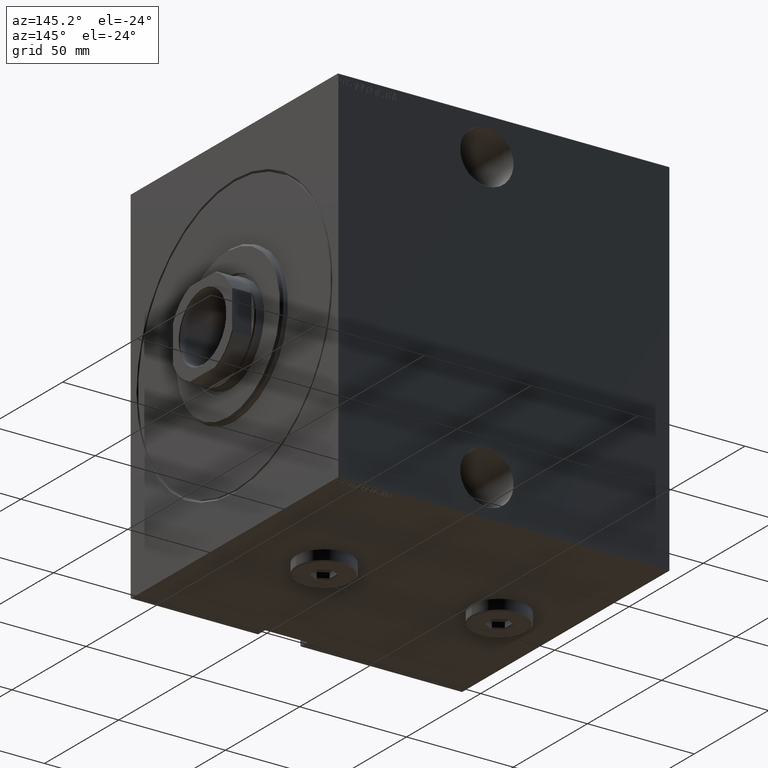
[diagram: clean part render]
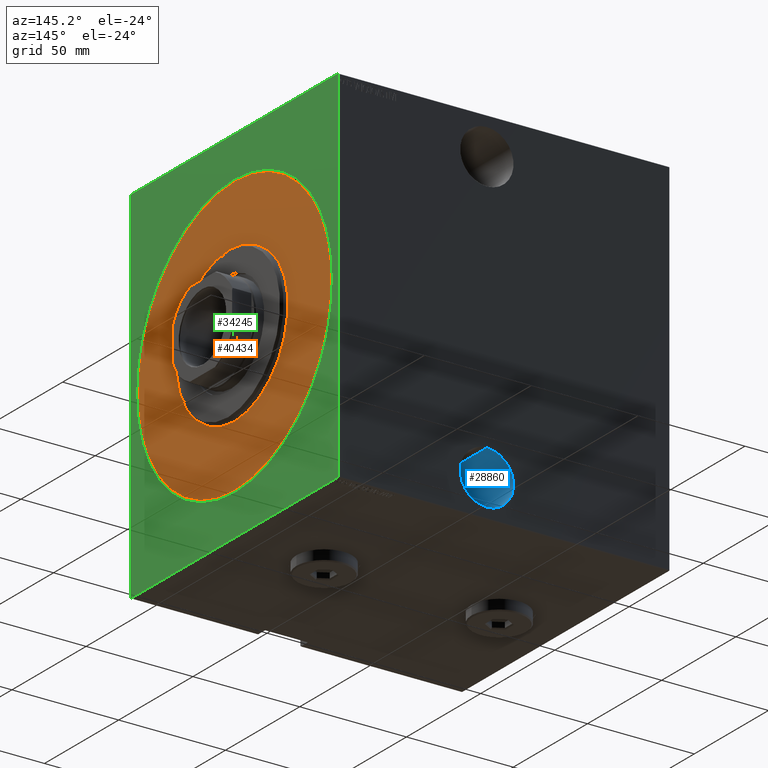
[diagram: same view with three faces highlighted in distinct colors, each labeled with its STEP entity id]
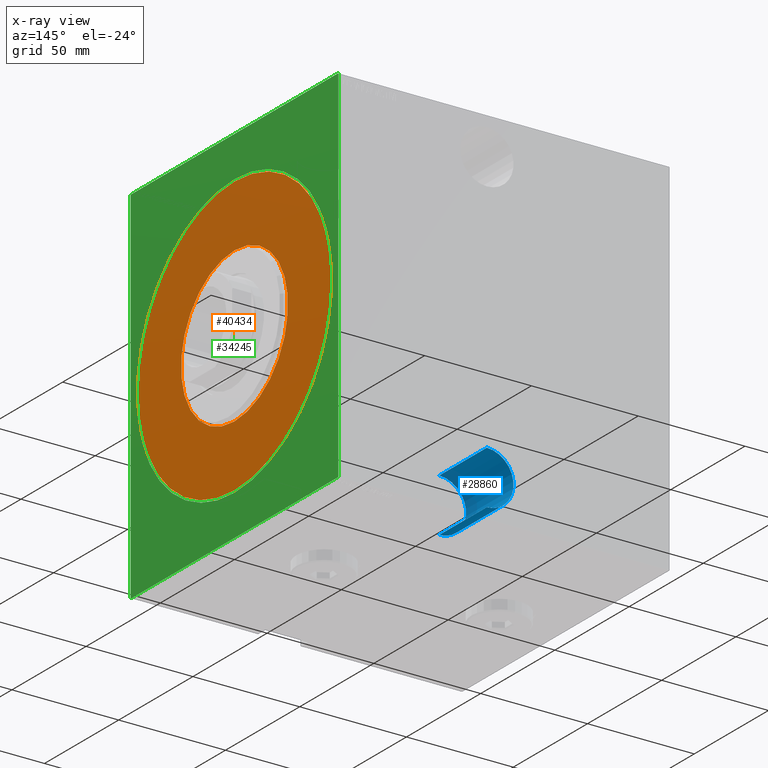
[diagram: x-ray of the same camera — body ghosted, the three highlighted faces saturated]
A machine part, auxiliary view with three faces highlighted in distinct colors.
The next image is the same camera in x-ray (body ghosted, the three faces saturated) — at least one of them is partly hidden behind the body in this view.
Their STEP definitions:

[orange] entity #40434 — the highlighted planar face has unit normal (1, 0, 0).
#864 = CARTESIAN_POINT ( 'NONE',  ( 0.000000000000000000, 7.960204194457797252E-15, 65.00000000000000000 ) ) ;
#1316 = DIRECTION ( 'NONE',  ( 0.000000000000000000, 0.000000000000000000, -1.000000000000000000 ) ) ;
#2880 = CARTESIAN_POINT ( 'NONE',  ( 0.000000000000000000, 0.000000000000000000, 0.000000000000000000 ) ) ;
#3931 = AXIS2_PLACEMENT_3D ( 'NONE', #18247, #31847, #1316 ) ;
#4928 = VERTEX_POINT ( 'NONE', #864 ) ;
#7348 = DIRECTION ( 'NONE',  ( 0.000000000000000000, 0.000000000000000000, -1.000000000000000000 ) ) ;
#7805 = FACE_OUTER_BOUND ( 'NONE', #38899, .T. ) ;
#10669 = DIRECTION ( 'NONE',  ( 1.000000000000000000, 0.000000000000000000, 0.000000000000000000 ) ) ;
#14183 = AXIS2_PLACEMENT_3D ( 'NONE', #21397, #18053, #31654 ) ;
#16245 = DIRECTION ( 'NONE',  ( 0.000000000000000000, 0.000000000000000000, -1.000000000000000000 ) ) ;
#16984 = CARTESIAN_POINT ( 'NONE',  ( 0.000000000000000000, 4.408728476930470856E-15, -36.00000000000000000 ) ) ;
#17756 = EDGE_CURVE ( 'NONE', #4928, #34488, #18197, .T. ) ;
#18053 = DIRECTION ( 'NONE',  ( 1.000000000000000000, 0.000000000000000000, 0.000000000000000000 ) ) ;
#18197 = CIRCLE ( 'NONE', #3931, 65.00000000000000000 ) ;
#18247 = CARTESIAN_POINT ( 'NONE',  ( 0.000000000000000000, 0.000000000000000000, 0.000000000000000000 ) ) ;
#19738 = EDGE_LOOP ( 'NONE', ( #36928, #32120 ) ) ;
#20852 = DIRECTION ( 'NONE',  ( 1.000000000000000000, -0.000000000000000000, 0.000000000000000000 ) ) ;
#21397 = CARTESIAN_POINT ( 'NONE',  ( 0.000000000000000000, 0.000000000000000000, 0.000000000000000000 ) ) ;
#21452 = DIRECTION ( 'NONE',  ( 1.000000000000000000, -0.000000000000000000, 0.000000000000000000 ) ) ;
#23405 = AXIS2_PLACEMENT_3D ( 'NONE', #35697, #21452, #32362 ) ;
#23810 = ORIENTED_EDGE ( 'NONE', *, *, #25755, .T. ) ;
#24253 = VERTEX_POINT ( 'NONE', #27940 ) ;
#24759 = FACE_BOUND ( 'NONE', #19738, .T. ) ;
#24801 = CIRCLE ( 'NONE', #26204, 36.00000000000000000 ) ;
#25024 = ORIENTED_EDGE ( 'NONE', *, *, #17756, .T. ) ;
#25426 = AXIS2_PLACEMENT_3D ( 'NONE', #27626, #10669, #7348 ) ;
#25755 = EDGE_CURVE ( 'NONE', #34488, #4928, #32539, .T. ) ;
#26204 = AXIS2_PLACEMENT_3D ( 'NONE', #2880, #20852, #16245 ) ;
#27626 = CARTESIAN_POINT ( 'NONE',  ( 0.000000000000000000, 0.000000000000000000, 0.000000000000000000 ) ) ;
#27717 = EDGE_CURVE ( 'NONE', #24253, #37636, #24801, .T. ) ;
#27903 = CARTESIAN_POINT ( 'NONE',  ( 0.000000000000000000, 0.000000000000000000, -65.00000000000000000 ) ) ;
#27940 = CARTESIAN_POINT ( 'NONE',  ( 0.000000000000000000, 0.000000000000000000, 36.00000000000000000 ) ) ;
#29793 = CIRCLE ( 'NONE', #23405, 36.00000000000000000 ) ;
#31654 = DIRECTION ( 'NONE',  ( 0.000000000000000000, 0.000000000000000000, -1.000000000000000000 ) ) ;
#31847 = DIRECTION ( 'NONE',  ( 1.000000000000000000, 0.000000000000000000, 0.000000000000000000 ) ) ;
#32120 = ORIENTED_EDGE ( 'NONE', *, *, #37815, .F. ) ;
#32362 = DIRECTION ( 'NONE',  ( 0.000000000000000000, 0.000000000000000000, -1.000000000000000000 ) ) ;
#32539 = CIRCLE ( 'NONE', #25426, 65.00000000000000000 ) ;
#34488 = VERTEX_POINT ( 'NONE', #27903 ) ;
#35697 = CARTESIAN_POINT ( 'NONE',  ( 0.000000000000000000, 0.000000000000000000, 0.000000000000000000 ) ) ;
#36928 = ORIENTED_EDGE ( 'NONE', *, *, #27717, .F. ) ;
#37636 = VERTEX_POINT ( 'NONE', #16984 ) ;
#37815 = EDGE_CURVE ( 'NONE', #37636, #24253, #29793, .T. ) ;
#38337 = PLANE ( 'NONE',  #14183 ) ;
#38899 = EDGE_LOOP ( 'NONE', ( #23810, #25024 ) ) ;
#40434 = ADVANCED_FACE ( 'NONE', ( #7805, #24759 ), #38337, .T. ) ;

[blue] entity #28860 — the highlighted cylindrical surface (edge-blend (fillet) strip) has radius 12.5 mm, axis along (0, 1, 0).
#2023 = EDGE_LOOP ( 'NONE', ( #9989, #18894, #5726, #23984 ) ) ;
#2466 = CARTESIAN_POINT ( 'NONE',  ( 69.50000000000002842, -70.00000000000000000, -80.00000000000000000 ) ) ;
#2495 = DIRECTION ( 'NONE',  ( -0.000000000000000000, -1.000000000000000000, 1.963837897332234442E-16 ) ) ;
#4437 = CARTESIAN_POINT ( 'NONE',  ( 69.50000000000002842, -38.00000000000000711, -80.00000000000000000 ) ) ;
#4521 = VECTOR ( 'NONE', #2495, 1000.000000000000000 ) ;
#5345 = CARTESIAN_POINT ( 'NONE',  ( 69.50000000000002842, -38.00000000000000711, -55.00000000000000711 ) ) ;
#5726 = ORIENTED_EDGE ( 'NONE', *, *, #20849, .T. ) ;
#5835 = CARTESIAN_POINT ( 'NONE',  ( 69.50000000000002842, -38.00000000000000711, -55.00000000000000711 ) ) ;
#6602 = VERTEX_POINT ( 'NONE', #4437 ) ;
#6970 = DIRECTION ( 'NONE',  ( 0.000000000000000000, 0.000000000000000000, -1.000000000000000000 ) ) ;
#9989 = ORIENTED_EDGE ( 'NONE', *, *, #12723, .F. ) ;
#11821 = AXIS2_PLACEMENT_3D ( 'NONE', #16279, #43458, #12907 ) ;
#11956 = AXIS2_PLACEMENT_3D ( 'NONE', #36377, #29469, #39706 ) ;
#12723 = EDGE_CURVE ( 'NONE', #13004, #29210, #36375, .T. ) ;
#12907 = DIRECTION ( 'NONE',  ( 0.000000000000000000, 0.000000000000000000, -1.000000000000000000 ) ) ;
#13004 = VERTEX_POINT ( 'NONE', #5345 ) ;
#14712 = AXIS2_PLACEMENT_3D ( 'NONE', #40829, #23901, #6970 ) ;
#15856 = CYLINDRICAL_SURFACE ( 'NONE', #11956, 12.49999999999999645 ) ;
#16279 = CARTESIAN_POINT ( 'NONE',  ( 69.50000000000002842, -38.00000000000000711, -67.50000000000000000 ) ) ;
#18894 = ORIENTED_EDGE ( 'NONE', *, *, #23915, .F. ) ;
#20849 = EDGE_CURVE ( 'NONE', #6602, #40156, #25566, .T. ) ;
#21108 = VECTOR ( 'NONE', #39786, 1000.000000000000000 ) ;
#23827 = EDGE_CURVE ( 'NONE', #40156, #29210, #25396, .T. ) ;
#23901 = DIRECTION ( 'NONE',  ( 0.000000000000000000, -1.000000000000000000, 1.963837897332234442E-16 ) ) ;
#23915 = EDGE_CURVE ( 'NONE', #6602, #13004, #43167, .T. ) ;
#23984 = ORIENTED_EDGE ( 'NONE', *, *, #23827, .T. ) ;
#25345 = CARTESIAN_POINT ( 'NONE',  ( 69.50000000000002842, -38.00000000000000711, -80.00000000000000000 ) ) ;
#25396 = CIRCLE ( 'NONE', #14712, 12.49999999999999645 ) ;
#25566 = LINE ( 'NONE', #25345, #21108 ) ;
#28860 = ADVANCED_FACE ( 'NONE', ( #33039 ), #15856, .F. ) ;
#29210 = VERTEX_POINT ( 'NONE', #39194 ) ;
#29469 = DIRECTION ( 'NONE',  ( -0.000000000000000000, -1.000000000000000000, 1.963837897332234442E-16 ) ) ;
#33039 = FACE_OUTER_BOUND ( 'NONE', #2023, .T. ) ;
#36375 = LINE ( 'NONE', #5835, #4521 ) ;
#36377 = CARTESIAN_POINT ( 'NONE',  ( 69.50000000000002842, -38.00000000000000711, -67.50000000000000000 ) ) ;
#39194 = CARTESIAN_POINT ( 'NONE',  ( 69.50000000000002842, -70.00000000000000000, -55.00000000000000711 ) ) ;
#39706 = DIRECTION ( 'NONE',  ( 0.000000000000000000, 0.000000000000000000, -1.000000000000000000 ) ) ;
#39786 = DIRECTION ( 'NONE',  ( -0.000000000000000000, -1.000000000000000000, 1.963837897332234442E-16 ) ) ;
#40156 = VERTEX_POINT ( 'NONE', #2466 ) ;
#40829 = CARTESIAN_POINT ( 'NONE',  ( 69.50000000000002842, -70.00000000000000000, -67.50000000000000000 ) ) ;
#43167 = CIRCLE ( 'NONE', #11821, 12.49999999999999645 ) ;
#43458 = DIRECTION ( 'NONE',  ( 0.000000000000000000, -1.000000000000000000, 1.963837897332234442E-16 ) ) ;

[green] entity #34245 — the highlighted planar face has unit normal (-1, 0, 0).
#17 = VERTEX_POINT ( 'NONE', #40688 ) ;
#544 = AXIS2_PLACEMENT_3D ( 'NONE', #8524, #32810, #15211 ) ;
#891 = EDGE_CURVE ( 'NONE', #1859, #22953, #26020, .T. ) ;
#941 = VERTEX_POINT ( 'NONE', #6406 ) ;
#1859 = VERTEX_POINT ( 'NONE', #31365 ) ;
#1891 = VECTOR ( 'NONE', #32461, 1000.000000000000000 ) ;
#1903 = DIRECTION ( 'NONE',  ( 0.000000000000000000, 0.000000000000000000, 1.000000000000000000 ) ) ;
#1987 = CARTESIAN_POINT ( 'NONE',  ( 0.000000000000000000, 0.000000000000000000, 0.000000000000000000 ) ) ;
#2654 = DIRECTION ( 'NONE',  ( 1.000000000000000000, 0.000000000000000000, -0.000000000000000000 ) ) ;
#3482 = VECTOR ( 'NONE', #13065, 1000.000000000000114 ) ;
#4225 = VERTEX_POINT ( 'NONE', #10592 ) ;
#4251 = LINE ( 'NONE', #38119, #40447 ) ;
#4271 = ORIENTED_EDGE ( 'NONE', *, *, #38623, .F. ) ;
#5070 = EDGE_CURVE ( 'NONE', #7356, #17, #41400, .T. ) ;
#5428 = CARTESIAN_POINT ( 'NONE',  ( 0.000000000000000000, 70.00000000000002842, -84.70000000000001705 ) ) ;
#5764 = LINE ( 'NONE', #9314, #37427 ) ;
#6406 = CARTESIAN_POINT ( 'NONE',  ( 0.000000000000000000, -69.99999999999998579, -84.69999999999998863 ) ) ;
#7023 = CARTESIAN_POINT ( 'NONE',  ( 0.000000000000000000, -69.99999999999998579, 84.70000000000004547 ) ) ;
#7356 = VERTEX_POINT ( 'NONE', #11311 ) ;
#7725 = AXIS2_PLACEMENT_3D ( 'NONE', #1987, #2654, #15785 ) ;
#8377 = CARTESIAN_POINT ( 'NONE',  ( 0.000000000000000000, 70.00000000000002842, -85.00000000000000000 ) ) ;
#8524 = CARTESIAN_POINT ( 'NONE',  ( 0.000000000000000000, 0.000000000000000000, 0.000000000000000000 ) ) ;
#8598 = CARTESIAN_POINT ( 'NONE',  ( 0.000000000000000000, -69.99999999999998579, 84.70000000000004547 ) ) ;
#9314 = CARTESIAN_POINT ( 'NONE',  ( 0.000000000000000000, -69.70000000000000284, -85.00000000000000000 ) ) ;
#10101 = EDGE_CURVE ( 'NONE', #1859, #16652, #24247, .T. ) ;
#10592 = CARTESIAN_POINT ( 'NONE',  ( 0.000000000000000000, 8.082668874372526089E-15, -65.99999999999994316 ) ) ;
#11206 = ORIENTED_EDGE ( 'NONE', *, *, #891, .T. ) ;
#11311 = CARTESIAN_POINT ( 'NONE',  ( 0.000000000000000000, 70.00000000000002842, -84.70000000000001705 ) ) ;
#11520 = CARTESIAN_POINT ( 'NONE',  ( 0.000000000000000000, -69.99999999999998579, -85.00000000000000000 ) ) ;
#12234 = VECTOR ( 'NONE', #24471, 1000.000000000000000 ) ;
#13065 = DIRECTION ( 'NONE',  ( -0.000000000000000000, 0.7071067811865638930, -0.7071067811865312525 ) ) ;
#14906 = VECTOR ( 'NONE', #28700, 1000.000000000000000 ) ;
#15211 = DIRECTION ( 'NONE',  ( 0.000000000000000000, 0.000000000000000000, -1.000000000000000000 ) ) ;
#15277 = LINE ( 'NONE', #8377, #19808 ) ;
#15780 = DIRECTION ( 'NONE',  ( -0.000000000000000000, 0.000000000000000000, -1.000000000000000000 ) ) ;
#15785 = DIRECTION ( 'NONE',  ( 0.000000000000000000, 0.000000000000000000, -1.000000000000000000 ) ) ;
#16427 = CARTESIAN_POINT ( 'NONE',  ( 0.000000000000000000, 69.70000000000007390, 85.00000000000001421 ) ) ;
#16652 = VERTEX_POINT ( 'NONE', #32974 ) ;
#17606 = CARTESIAN_POINT ( 'NONE',  ( 0.000000000000000000, 70.00000000000002842, 84.70000000000007390 ) ) ;
#18540 = VERTEX_POINT ( 'NONE', #36661 ) ;
#19362 = DIRECTION ( 'NONE',  ( 1.000000000000000000, 0.000000000000000000, -0.000000000000000000 ) ) ;
#19808 = VECTOR ( 'NONE', #1903, 1000.000000000000000 ) ;
#20312 = ORIENTED_EDGE ( 'NONE', *, *, #10101, .F. ) ;
#21384 = CARTESIAN_POINT ( 'NONE',  ( 0.000000000000000000, 0.000000000000000000, 65.99999999999994316 ) ) ;
#22475 = FACE_OUTER_BOUND ( 'NONE', #36714, .T. ) ;
#22953 = VERTEX_POINT ( 'NONE', #17606 ) ;
#24247 = LINE ( 'NONE', #27361, #12234 ) ;
#24471 = DIRECTION ( 'NONE',  ( 0.000000000000000000, -1.000000000000000000, -9.912705577010325549E-17 ) ) ;
#25799 = VERTEX_POINT ( 'NONE', #21384 ) ;
#26020 = LINE ( 'NONE', #16427, #3482 ) ;
#27361 = CARTESIAN_POINT ( 'NONE',  ( 0.000000000000000000, 70.00000000000002842, 85.00000000000001421 ) ) ;
#28083 = EDGE_CURVE ( 'NONE', #25799, #4225, #37594, .T. ) ;
#28556 = ORIENTED_EDGE ( 'NONE', *, *, #41424, .F. ) ;
#28700 = DIRECTION ( 'NONE',  ( 0.000000000000000000, 1.000000000000000000, 0.000000000000000000 ) ) ;
#29322 = LINE ( 'NONE', #8598, #1891 ) ;
#29714 = ORIENTED_EDGE ( 'NONE', *, *, #38828, .T. ) ;
#30318 = EDGE_CURVE ( 'NONE', #18540, #941, #5764, .T. ) ;
#31365 = CARTESIAN_POINT ( 'NONE',  ( 0.000000000000000000, 69.70000000000007390, 85.00000000000001421 ) ) ;
#32461 = DIRECTION ( 'NONE',  ( -0.000000000000000000, 0.7071067811865638930, 0.7071067811865311414 ) ) ;
#32691 = EDGE_CURVE ( 'NONE', #43133, #16652, #29322, .T. ) ;
#32810 = DIRECTION ( 'NONE',  ( 1.000000000000000000, 0.000000000000000000, -0.000000000000000000 ) ) ;
#32974 = CARTESIAN_POINT ( 'NONE',  ( 0.000000000000000000, -69.70000000000001705, 85.00000000000000000 ) ) ;
#33721 = ORIENTED_EDGE ( 'NONE', *, *, #28083, .T. ) ;
#34157 = ORIENTED_EDGE ( 'NONE', *, *, #32691, .T. ) ;
#34245 = ADVANCED_FACE ( 'NONE', ( #39410, #22475 ), #36308, .F. ) ;
#35171 = LINE ( 'NONE', #11520, #14906 ) ;
#35388 = ORIENTED_EDGE ( 'NONE', *, *, #36802, .F. ) ;
#36081 = CARTESIAN_POINT ( 'NONE',  ( 0.000000000000000000, 0.000000000000000000, 0.000000000000000000 ) ) ;
#36308 = PLANE ( 'NONE',  #36838 ) ;
#36661 = CARTESIAN_POINT ( 'NONE',  ( 0.000000000000000000, -69.70000000000000284, -85.00000000000000000 ) ) ;
#36714 = EDGE_LOOP ( 'NONE', ( #20312, #11206, #35388, #39919, #28556, #36833, #4271, #34157 ) ) ;
#36802 = EDGE_CURVE ( 'NONE', #7356, #22953, #15277, .T. ) ;
#36833 = ORIENTED_EDGE ( 'NONE', *, *, #30318, .T. ) ;
#36838 = AXIS2_PLACEMENT_3D ( 'NONE', #36081, #19362, #15780 ) ;
#37427 = VECTOR ( 'NONE', #41399, 999.9999999999998863 ) ;
#37594 = CIRCLE ( 'NONE', #544, 65.99999999999994316 ) ;
#38119 = CARTESIAN_POINT ( 'NONE',  ( 0.000000000000000000, -69.99999999999998579, 85.00000000000000000 ) ) ;
#38623 = EDGE_CURVE ( 'NONE', #43133, #941, #4251, .T. ) ;
#38828 = EDGE_CURVE ( 'NONE', #4225, #25799, #39041, .T. ) ;
#38909 = EDGE_LOOP ( 'NONE', ( #33721, #29714 ) ) ;
#39041 = CIRCLE ( 'NONE', #7725, 65.99999999999994316 ) ;
#39092 = DIRECTION ( 'NONE',  ( -0.000000000000000000, -0.7071067811865965336, -0.7071067811864985009 ) ) ;
#39410 = FACE_BOUND ( 'NONE', #38909, .T. ) ;
#39919 = ORIENTED_EDGE ( 'NONE', *, *, #5070, .T. ) ;
#40447 = VECTOR ( 'NONE', #41453, 1000.000000000000000 ) ;
#40688 = CARTESIAN_POINT ( 'NONE',  ( 0.000000000000000000, 69.70000000000000284, -85.00000000000000000 ) ) ;
#40702 = VECTOR ( 'NONE', #39092, 1000.000000000000114 ) ;
#41399 = DIRECTION ( 'NONE',  ( 0.000000000000000000, -0.7071067811865149322, 0.7071067811865802133 ) ) ;
#41400 = LINE ( 'NONE', #5428, #40702 ) ;
#41424 = EDGE_CURVE ( 'NONE', #18540, #17, #35171, .T. ) ;
#41453 = DIRECTION ( 'NONE',  ( 0.000000000000000000, 0.000000000000000000, -1.000000000000000000 ) ) ;
#43133 = VERTEX_POINT ( 'NONE', #7023 ) ;